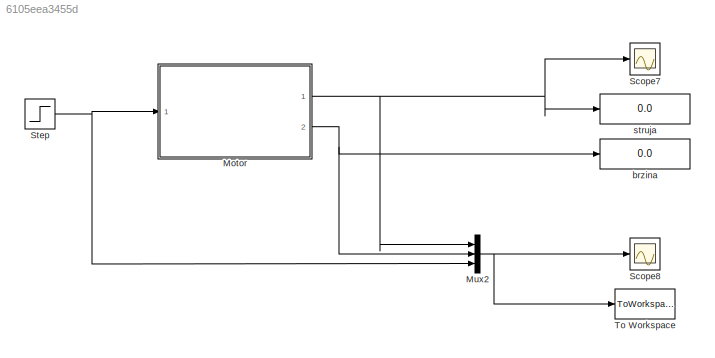
MODEL slx_6105eea3455d
KIND model
CONFIG AbsTol = auto
CONFIG EnableMultiTasking = off
CONFIG FixedStep = 0.01
CONFIG MaxStep = 8.0
CONFIG MinStep = auto
CONFIG RelTol = 1e-3
CONFIG SampleTimeConstraint = Unconstrained
CONFIG Solver = ode8
CONFIG SolverName = ode8
CONFIG StartTime = 0.0
CONFIG StopTime = 15
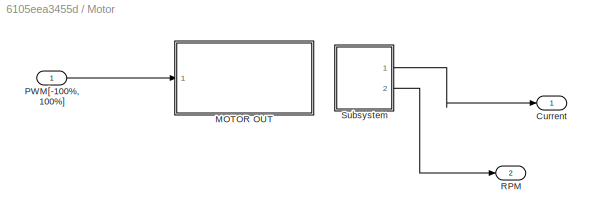
BLOCK [SubSystem] Motor
  Ports = [1, 2]
  RequestExecContextInheritance = off
  Variant = off
BLOCK [Outport] Motor/Current
  IconDisplay = Port number
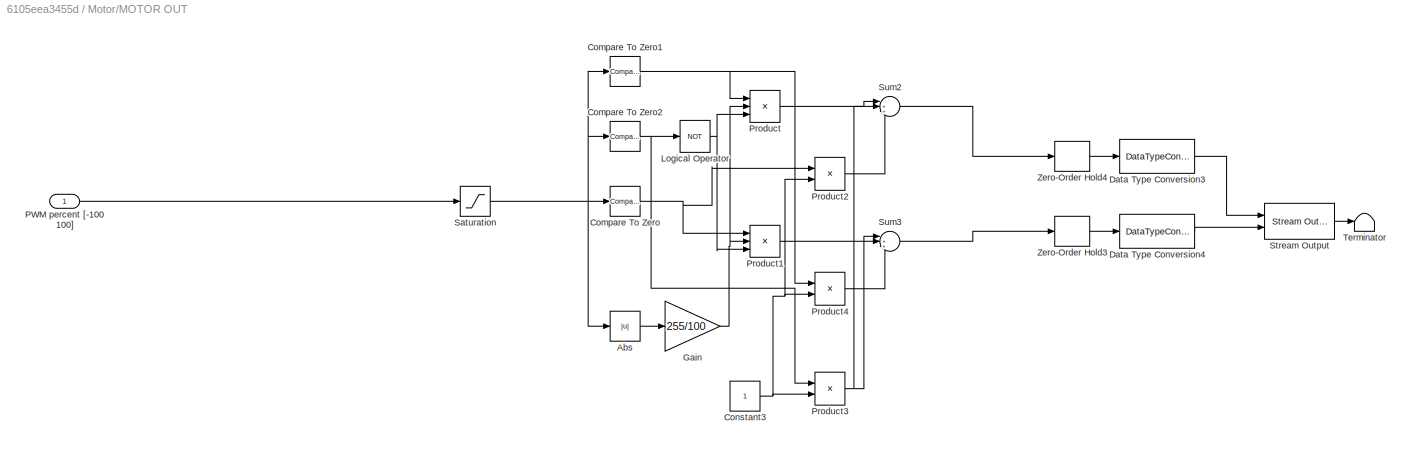
BLOCK [SubSystem] Motor/MOTOR OUT
  Ports = [1]
  RequestExecContextInheritance = off
  Variant = off
BLOCK [Abs] Motor/MOTOR OUT/Abs
  SaturateOnIntegerOverflow = off
BLOCK [Reference] Motor/MOTOR OUT/Compare To Zero  REF=simulink/Logic and Bit
Operations/Compare
To Zero
  Ports = [1, 1]
  SourceBlock = simulink/Logic and Bit\nOperations/Compare\nTo Zero
  SourceProductBaseCode = SL
  SourceProductName = Simulink
  SourceType = Compare To Zero
BLOCK [Reference] Motor/MOTOR OUT/Compare To Zero1  REF=simulink/Logic and Bit
Operations/Compare
To Zero
  Ports = [1, 1]
  SourceBlock = simulink/Logic and Bit\nOperations/Compare\nTo Zero
  SourceProductBaseCode = SL
  SourceProductName = Simulink
  SourceType = Compare To Zero
BLOCK [Reference] Motor/MOTOR OUT/Compare To Zero2  REF=simulink/Logic and Bit
Operations/Compare
To Zero
  Ports = [1, 1]
  SourceBlock = simulink/Logic and Bit\nOperations/Compare\nTo Zero
  SourceProductBaseCode = SL
  SourceProductName = Simulink
  SourceType = Compare To Zero
BLOCK [Constant] Motor/MOTOR OUT/Constant3
BLOCK [DataTypeConversion] Motor/MOTOR OUT/Data Type Conversion3
  OutDataTypeStr = uint8
  OutMax = [255]
  OutMin = [0]
  RndMeth = Nearest
  SaturateOnIntegerOverflow = off
BLOCK [DataTypeConversion] Motor/MOTOR OUT/Data Type Conversion4
  OutDataTypeStr = uint8
  OutMax = [255]
  OutMin = [0]
  RndMeth = Nearest
  SaturateOnIntegerOverflow = off
BLOCK [Gain] Motor/MOTOR OUT/Gain
  Gain = 255/100
  OutDataTypeStr = Inherit: Inherit via internal rule
  ParamDataTypeStr = Inherit: Inherit via internal rule
  SaturateOnIntegerOverflow = off
BLOCK [Logic] Motor/MOTOR OUT/Logical Operator
  AllPortsSameDT = off
  Operator = NOT
  OutDataTypeStr = boolean
  Ports = [1, 1]
BLOCK [Inport] Motor/MOTOR OUT/PWM percent [-100 100]
  IconDisplay = Port number
BLOCK [Product] Motor/MOTOR OUT/Product
  InputSameDT = off
  Inputs = 3
  OutDataTypeStr = Inherit: Inherit via internal rule
  Ports = [3, 1]
  RndMeth = Floor
  SaturateOnIntegerOverflow = off
BLOCK [Product] Motor/MOTOR OUT/Product1
  InputSameDT = off
  Inputs = 3
  OutDataTypeStr = Inherit: Inherit via internal rule
  Ports = [3, 1]
  RndMeth = Floor
  SaturateOnIntegerOverflow = off
BLOCK [Product] Motor/MOTOR OUT/Product2
  InputSameDT = off
  OutDataTypeStr = Inherit: Inherit via internal rule
  Ports = [2, 1]
  RndMeth = Floor
  SaturateOnIntegerOverflow = off
BLOCK [Product] Motor/MOTOR OUT/Product3
  InputSameDT = off
  OutDataTypeStr = Inherit: Inherit via internal rule
  Ports = [2, 1]
  RndMeth = Floor
  SaturateOnIntegerOverflow = off
BLOCK [Product] Motor/MOTOR OUT/Product4
  InputSameDT = off
  OutDataTypeStr = Inherit: Inherit via internal rule
  Ports = [2, 1]
  RndMeth = Floor
  SaturateOnIntegerOverflow = off
BLOCK [Saturate] Motor/MOTOR OUT/Saturation
  InputPortMap = u0
  LowerLimit = -100
  Ports = [1, 1]
  UpperLimit = 100
BLOCK [Reference] Motor/MOTOR OUT/Stream Output  REF=sldrtlib/Stream Output
  AttributesFormatString = Standard Devices\nSerial Port [4h]
  Ports = [2, 1]
  SourceBlock = sldrtlib/Stream Output
  SourceProductBaseCode = WT
  SourceProductName = Simulink Desktop Real-Time
  SourceType = Simulink Desktop Real-Time Stream Output
BLOCK [Sum] Motor/MOTOR OUT/Sum2
  IconShape = round
  InputSameDT = off
  Inputs = |+++
  OutDataTypeStr = Inherit: Inherit via internal rule
  Ports = [3, 1]
  SaturateOnIntegerOverflow = off
BLOCK [Sum] Motor/MOTOR OUT/Sum3
  IconShape = round
  InputSameDT = off
  Inputs = |+++
  OutDataTypeStr = Inherit: Inherit via internal rule
  Ports = [3, 1]
  SaturateOnIntegerOverflow = off
BLOCK [Terminator] Motor/MOTOR OUT/Terminator
BLOCK [ZeroOrderHold] Motor/MOTOR OUT/Zero-Order Hold3
  SampleTime = -1
BLOCK [ZeroOrderHold] Motor/MOTOR OUT/Zero-Order Hold4
  SampleTime = -1
BLOCK [Inport] Motor/PWM[-100%, 100%] 
  IconDisplay = Port number
BLOCK [Outport] Motor/RPM
  IconDisplay = Port number
  Port = 2
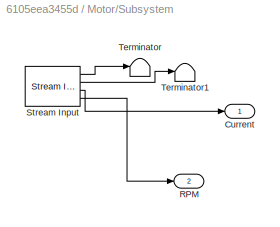
BLOCK [SubSystem] Motor/Subsystem
  Ports = [0, 2]
  RequestExecContextInheritance = off
  Variant = off
BLOCK [Outport] Motor/Subsystem/Current
  IconDisplay = Port number
BLOCK [Outport] Motor/Subsystem/RPM 
  IconDisplay = Port number
  Port = 2
BLOCK [Reference] Motor/Subsystem/Stream Input  REF=sldrtlib/Stream Input
  AttributesFormatString = Standard Devices\nSerial Port [4h]
  Ports = [0, 4]
  SourceBlock = sldrtlib/Stream Input
  SourceProductBaseCode = WT
  SourceProductName = Simulink Desktop Real-Time
  SourceType = Simulink Desktop Real-Time Stream Input
BLOCK [Terminator] Motor/Subsystem/Terminator
BLOCK [Terminator] Motor/Subsystem/Terminator1
BLOCK [Mux] Mux2
  DisplayOption = bar
  Inputs = 3
  Ports = [3, 1]
BLOCK [Scope] Scope7
  NumInputPorts = 1
  Ports = [1]
  ScopeSpecificationString = Simulink.scopes.TimeScopeBlockCfg('CurrentConfiguration', extmgr.ConfigurationSet(extmgr.Configuration('Core','General UI',true),extmgr.Configuration('Core','Source UI',true),extmgr.Configuration('Sources','WiredSimulink',true,'DataLoggingVariableName','ScopeData3'),extmgr.Configuration('Visuals','Time Domain',true,'SerializedDisplays',{struct('MinYLimReal','-1.7803','MaxYLimReal','1.99536','YLabe...<+1391ch>
BLOCK [Scope] Scope8
  NumInputPorts = 1
  Ports = [1]
  ScopeSpecificationString = Simulink.scopes.TimeScopeBlockCfg('CurrentConfiguration', extmgr.ConfigurationSet(extmgr.Configuration('Core','General UI',true),extmgr.Configuration('Core','Source UI',true),extmgr.Configuration('Sources','WiredSimulink',true,'DataLoggingVariableName','ScopeData1'),extmgr.Configuration('Visuals','Time Domain',true,'SerializedDisplays',{struct('MinYLimReal','-8337.23023','MaxYLimReal','13083.16018...<+1460ch>
BLOCK [Step] Step
  After = 0
  Before = 100
  SampleTime = 0
  Time = 10
BLOCK [ToWorkspace] To Workspace
  FixptAsFi = on
  MaxDataPoints = inf
  Ports = [1]
  SampleTime = -1
  Save2DSignal = 3-D array (concatenate along third dimension)
  SaveFormat = Timeseries
  VariableName = simout
BLOCK [Display] brzina
  Decimation = 1
  Ports = [1]
BLOCK [Display] struja
  Decimation = 1
  Ports = [1]
LINE Motor/MOTOR OUT/Abs:1 -> Motor/MOTOR OUT/Gain:1
NET Motor/MOTOR OUT/Compare To Zero1:1 -> Motor/MOTOR OUT/Product4:1, Motor/MOTOR OUT/Product:1
NET Motor/MOTOR OUT/Compare To Zero2:1 -> Motor/MOTOR OUT/Logical Operator:1, Motor/MOTOR OUT/Product3:1
NET Motor/MOTOR OUT/Compare To Zero:1 -> Motor/MOTOR OUT/Product1:1, Motor/MOTOR OUT/Product2:1
NET Motor/MOTOR OUT/Constant3:1 -> Motor/MOTOR OUT/Product2:2, Motor/MOTOR OUT/Product3:2, Motor/MOTOR OUT/Product4:2
LINE Motor/MOTOR OUT/Data Type Conversion3:1 -> Motor/MOTOR OUT/Stream Output:1
LINE Motor/MOTOR OUT/Data Type Conversion4:1 -> Motor/MOTOR OUT/Stream Output:2
NET Motor/MOTOR OUT/Gain:1 -> Motor/MOTOR OUT/Product1:2, Motor/MOTOR OUT/Product:2
NET Motor/MOTOR OUT/Logical Operator:1 -> Motor/MOTOR OUT/Product1:3, Motor/MOTOR OUT/Product:3
LINE Motor/MOTOR OUT/PWM percent [-100 100]:1 -> Motor/MOTOR OUT/Saturation:1
LINE Motor/MOTOR OUT/Product1:1 -> Motor/MOTOR OUT/Sum3:1
LINE Motor/MOTOR OUT/Product2:1 -> Motor/MOTOR OUT/Sum2:3
NET Motor/MOTOR OUT/Product3:1 -> Motor/MOTOR OUT/Sum2:2, Motor/MOTOR OUT/Sum3:2
LINE Motor/MOTOR OUT/Product4:1 -> Motor/MOTOR OUT/Sum3:3
LINE Motor/MOTOR OUT/Product:1 -> Motor/MOTOR OUT/Sum2:1
NET Motor/MOTOR OUT/Saturation:1 -> Motor/MOTOR OUT/Abs:1, Motor/MOTOR OUT/Compare To Zero1:1, Motor/MOTOR OUT/Compare To Zero2:1, Motor/MOTOR OUT/Compare To Zero:1
LINE Motor/MOTOR OUT/Stream Output:1 -> Motor/MOTOR OUT/Terminator:1
LINE Motor/MOTOR OUT/Sum2:1 -> Motor/MOTOR OUT/Zero-Order Hold4:1
LINE Motor/MOTOR OUT/Sum3:1 -> Motor/MOTOR OUT/Zero-Order Hold3:1
LINE Motor/MOTOR OUT/Zero-Order Hold3:1 -> Motor/MOTOR OUT/Data Type Conversion4:1
LINE Motor/MOTOR OUT/Zero-Order Hold4:1 -> Motor/MOTOR OUT/Data Type Conversion3:1
LINE Motor/PWM[-100%, 100%] :1 -> Motor/MOTOR OUT:1
LINE Motor/Subsystem/Stream Input:1 -> Motor/Subsystem/Terminator:1
LINE Motor/Subsystem/Stream Input:2 -> Motor/Subsystem/Terminator1:1
LINE Motor/Subsystem/Stream Input:3 -> Motor/Subsystem/Current:1
LINE Motor/Subsystem/Stream Input:4 -> Motor/Subsystem/RPM :1
LINE Motor/Subsystem:1 -> Motor/Current:1
LINE Motor/Subsystem:2 -> Motor/RPM:1
NET Motor:1 -> Mux2:1, Scope7:1, struja:1
NET Motor:2 -> Mux2:2, brzina:1
NET Mux2:1 -> Scope8:1, To Workspace:1
NET Step:1 -> Motor:1, Mux2:3
note: NET lines group one-source signal fan-out (src -> all destinations, sorted); 1:1 wires keep LINE
